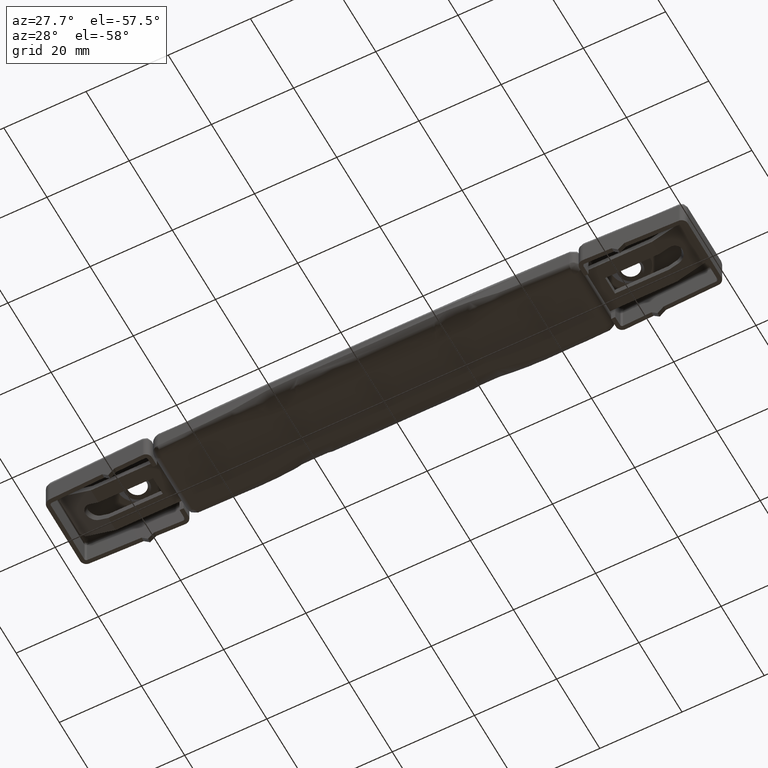
[diagram: clean part render]
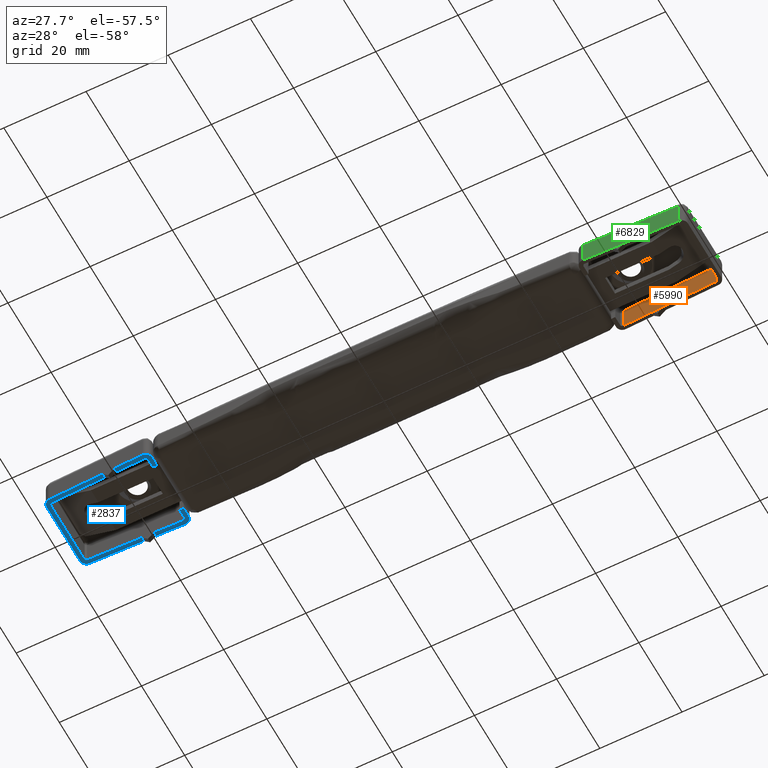
[diagram: same view with three faces highlighted in distinct colors, each labeled with its STEP entity id]
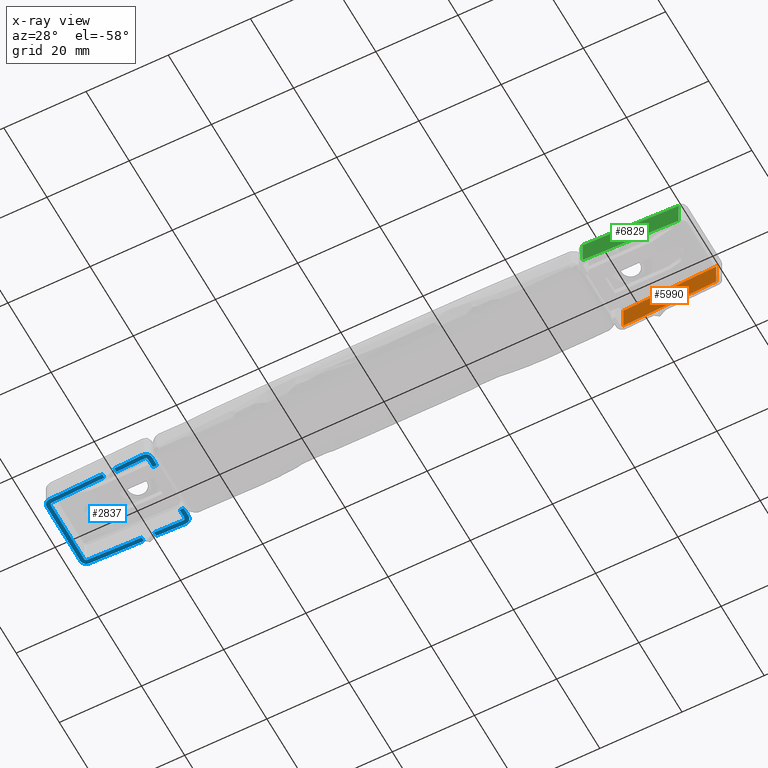
[diagram: x-ray of the same camera — body ghosted, the three highlighted faces saturated]
A machine part, auxiliary view with three faces highlighted in distinct colors.
The next image is the same camera in x-ray (body ghosted, the three faces saturated) — at least one of them is partly hidden behind the body in this view.
Their STEP definitions:

[orange] entity #5990 — the highlighted face is a freeform B-spline surface patch.
#5172=CARTESIAN_POINT('',(63.500000000000000,8.646147023335811,0.0));
#5173=VERTEX_POINT('',#5172);
#5207=CARTESIAN_POINT('',(60.500000000000000,8.738494849422798,0.0));
#5208=VERTEX_POINT('',#5207);
#5228=CARTESIAN_POINT('',(60.500000000000000,8.738494849422798,0.0));
#5229=CARTESIAN_POINT('',(63.500000000000000,8.646147023335811,0.0));
#5230=QUASI_UNIFORM_CURVE('',1,(#5228,#5229),.UNSPECIFIED.,.F.,.U.);
#5231=EDGE_CURVE('',#5208,#5173,#5230,.T.);
#5444=CARTESIAN_POINT('',(76.515384017364710,8.245499550105571,6.0));
#5445=VERTEX_POINT('',#5444);
#5613=CARTESIAN_POINT('',(53.515384017364703,8.953499550105672,6.0));
#5614=VERTEX_POINT('',#5613);
#5718=CARTESIAN_POINT('',(53.515384017364703,8.953499550105672,-4.440892E-013));
#5719=VERTEX_POINT('',#5718);
#5729=CARTESIAN_POINT('',(53.515384017364703,8.953499550105672,-4.440892E-013));
#5730=CARTESIAN_POINT('',(53.515384017364703,8.953499550105672,6.0));
#5731=QUASI_UNIFORM_CURVE('',1,(#5729,#5730),.UNSPECIFIED.,.F.,.U.);
#5732=EDGE_CURVE('',#5719,#5614,#5731,.T.);
#5797=CARTESIAN_POINT('',(76.515384017364710,8.245499550105571,0.0));
#5798=VERTEX_POINT('',#5797);
#5799=CARTESIAN_POINT('',(76.515384017364710,8.245499550105571,6.0));
#5800=CARTESIAN_POINT('',(76.515384017364710,8.245499550105571,0.0));
#5801=QUASI_UNIFORM_CURVE('',1,(#5799,#5800),.UNSPECIFIED.,.F.,.U.);
#5802=EDGE_CURVE('',#5445,#5798,#5801,.T.);
#5842=CARTESIAN_POINT('',(53.515384017364703,8.953499550105672,6.0));
#5843=CARTESIAN_POINT('',(76.515384017364710,8.245499550105571,6.0));
#5844=QUASI_UNIFORM_CURVE('',1,(#5842,#5843),.UNSPECIFIED.,.F.,.U.);
#5845=EDGE_CURVE('',#5614,#5445,#5844,.T.);
#5969=CARTESIAN_POINT('',(77.664233972786249,8.210134951477812,-0.299699988371302));
#5970=CARTESIAN_POINT('',(52.366533445035081,8.988864167723477,-0.299699988371302));
#5971=CARTESIAN_POINT('',(77.664233972786249,8.210134951477812,6.299700149303400));
#5972=CARTESIAN_POINT('',(52.366533445035081,8.988864167723477,6.299700149303400));
#5973=B_SPLINE_SURFACE_WITH_KNOTS('',1,1,((#5969,#5971),(#5970,#5972)),.UNSPECIFIED.,.F.,.F.,.U.,(2,2),(2,2),(0.0,25.309683348157801),(0.0,6.599400137674702),.UNSPECIFIED.);
#5974=ORIENTED_EDGE('',*,*,#5845,.F.);
#5975=ORIENTED_EDGE('',*,*,#5732,.F.);
#5976=CARTESIAN_POINT('',(53.515384017364703,8.953499550105672,-4.440892E-013));
#5977=CARTESIAN_POINT('',(60.500000000000000,8.738494849422798,0.0));
#5978=QUASI_UNIFORM_CURVE('',1,(#5976,#5977),.UNSPECIFIED.,.F.,.U.);
#5979=EDGE_CURVE('',#5719,#5208,#5978,.T.);
#5980=ORIENTED_EDGE('',*,*,#5979,.T.);
#5981=ORIENTED_EDGE('',*,*,#5231,.T.);
#5982=CARTESIAN_POINT('',(63.500000000000000,8.646147023335811,0.0));
#5983=CARTESIAN_POINT('',(76.515384017364710,8.245499550105571,0.0));
#5984=QUASI_UNIFORM_CURVE('',1,(#5982,#5983),.UNSPECIFIED.,.F.,.U.);
#5985=EDGE_CURVE('',#5173,#5798,#5984,.T.);
#5986=ORIENTED_EDGE('',*,*,#5985,.T.);
#5987=ORIENTED_EDGE('',*,*,#5802,.F.);
#5988=EDGE_LOOP('',(#5974,#5975,#5980,#5981,#5986,#5987));
#5989=FACE_OUTER_BOUND('',#5988,.T.);
#5990=ADVANCED_FACE('',(#5989),#5973,.F.);

[blue] entity #2837 — the highlighted face is a freeform B-spline surface patch.
#1054=CARTESIAN_POINT('',(-63.500000000000000,-9.646150517391259,0.0));
#1055=VERTEX_POINT('',#1054);
#1061=CARTESIAN_POINT('',(-63.500000000000000,-8.646147023335811,0.0));
#1062=VERTEX_POINT('',#1061);
#1063=CARTESIAN_POINT('',(-63.500000000000000,-8.646147023335811,0.0));
#1064=CARTESIAN_POINT('',(-63.500000000000000,-9.646150517391259,0.0));
#1065=QUASI_UNIFORM_CURVE('',1,(#1063,#1064),.UNSPECIFIED.,.F.,.U.);
#1066=EDGE_CURVE('',#1062,#1055,#1065,.T.);
#1087=CARTESIAN_POINT('',(-60.500000000000000,-9.738459213043500,0.0));
#1088=VERTEX_POINT('',#1087);
#1096=CARTESIAN_POINT('',(-60.500000000000000,-8.738494849422798,0.0));
#1097=VERTEX_POINT('',#1096);
#1103=CARTESIAN_POINT('',(-60.500000000000000,-9.738459213043500,0.0));
#1104=CARTESIAN_POINT('',(-60.500000000000000,-8.738494849422798,0.0));
#1105=QUASI_UNIFORM_CURVE('',1,(#1103,#1104),.UNSPECIFIED.,.F.,.U.);
#1106=EDGE_CURVE('',#1088,#1097,#1105,.T.);
#1140=CARTESIAN_POINT('',(-63.500000000000000,8.645696660869561,0.0));
#1141=VERTEX_POINT('',#1140);
#1147=CARTESIAN_POINT('',(-63.500000000000000,9.645620695652170,0.0));
#1148=VERTEX_POINT('',#1147);
#1149=CARTESIAN_POINT('',(-63.500000000000000,8.645696660869561,0.0));
#1150=CARTESIAN_POINT('',(-63.500000000000000,9.645620695652170,0.0));
#1151=QUASI_UNIFORM_CURVE('',1,(#1149,#1150),.UNSPECIFIED.,.F.,.U.);
#1152=EDGE_CURVE('',#1141,#1148,#1151,.T.);
#1168=CARTESIAN_POINT('',(-60.500000000000000,9.737968521739139,0.0));
#1169=VERTEX_POINT('',#1168);
#1175=CARTESIAN_POINT('',(-60.500000000000000,8.738005356521768,-2.775558E-014));
#1176=VERTEX_POINT('',#1175);
#1177=CARTESIAN_POINT('',(-60.500000000000000,9.737968521739139,0.0));
#1178=CARTESIAN_POINT('',(-60.500000000000000,8.738005356521768,-2.775558E-014));
#1179=QUASI_UNIFORM_CURVE('',1,(#1177,#1178),.UNSPECIFIED.,.F.,.U.);
#1180=EDGE_CURVE('',#1169,#1176,#1179,.T.);
#1558=CARTESIAN_POINT('',(-53.515384017364703,8.952499550105671,0.0));
#1559=VERTEX_POINT('',#1558);
#1565=CARTESIAN_POINT('',(-53.0,8.452736274134210,0.0));
#1566=VERTEX_POINT('',#1565);
#1567=CARTESIAN_POINT('',(-53.515384017364703,8.952499550105671,0.0));
#1568=CARTESIAN_POINT('',(-53.457025701274858,8.954326184272668,0.0));
#1569=CARTESIAN_POINT('',(-53.331268979952370,8.936024244830657,0.0));
#1570=CARTESIAN_POINT('',(-53.161364044684987,8.838860564482975,0.0));
#1571=CARTESIAN_POINT('',(-53.032556051068092,8.669504670740041,0.0));
#1572=CARTESIAN_POINT('',(-52.999875339479480,8.527834964618922,0.0));
#1573=CARTESIAN_POINT('',(-53.0,8.452736274134210,0.0));
#1574=B_SPLINE_CURVE_WITH_KNOTS('',3,(#1567,#1568,#1569,#1570,#1571,#1572,#1573),.UNSPECIFIED.,.F.,.U.,(4,1,1,1,4),(0.000000569266477,0.175185912129416,0.375442569291639,0.575619680285155,0.800868105577912),.UNSPECIFIED.);
#1575=EDGE_CURVE('',#1559,#1566,#1574,.T.);
#1600=CARTESIAN_POINT('',(-53.0,-8.453736274134210,0.0));
#1601=VERTEX_POINT('',#1600);
#1607=CARTESIAN_POINT('',(-53.515384017364703,-8.953499550105672,-4.440892E-013));
#1608=VERTEX_POINT('',#1607);
#1609=CARTESIAN_POINT('',(-53.0,-8.453736274134210,0.0));
#1610=CARTESIAN_POINT('',(-52.999641937350503,-8.553915980082039,2.757221E-015));
#1611=CARTESIAN_POINT('',(-53.051807587274482,-8.720294205238639,1.312732E-014));
#1612=CARTESIAN_POINT('',(-53.247414701314781,-8.909875614122786,-1.087166E-013));
#1613=CARTESIAN_POINT('',(-53.415239522939963,-8.956955849707880,2.882294E-013));
#1614=CARTESIAN_POINT('',(-53.515384017364703,-8.953499550105672,-4.440892E-013));
#1615=B_SPLINE_CURVE_WITH_KNOTS('',3,(#1609,#1610,#1611,#1612,#1613,#1614),.UNSPECIFIED.,.F.,.U.,(4,1,1,4),(0.000000569266561,0.300329223898913,0.500539450945406,0.800868105577936),.UNSPECIFIED.);
#1616=EDGE_CURVE('',#1601,#1608,#1615,.T.);
#1641=CARTESIAN_POINT('',(-77.0,7.744736274134200,0.0));
#1642=VERTEX_POINT('',#1641);
#1648=CARTESIAN_POINT('',(-76.515384017364710,8.244499550105649,0.0));
#1649=VERTEX_POINT('',#1648);
#1650=CARTESIAN_POINT('',(-77.0,7.744736274134200,0.0));
#1651=CARTESIAN_POINT('',(-77.0,8.229581805944509,0.0));
#1652=CARTESIAN_POINT('',(-76.515384017364710,8.244499550105656,0.0));
#1660=(BOUNDED_CURVE()B_SPLINE_CURVE(2,(#1650,#1651,#1652),.UNSPECIFIED.,.F.,.U.)CURVE()GEOMETRIC_REPRESENTATION_ITEM()QUASI_UNIFORM_CURVE()RATIONAL_B_SPLINE_CURVE((1.0,0.717902512437945,1.0))REPRESENTATION_ITEM(''));
#1661=EDGE_CURVE('',#1642,#1649,#1660,.T.);
#1686=CARTESIAN_POINT('',(-76.515384017364710,-8.245499550105571,0.0));
#1687=VERTEX_POINT('',#1686);
#1693=CARTESIAN_POINT('',(-77.0,-7.745736274134121,0.0));
#1694=VERTEX_POINT('',#1693);
#1695=CARTESIAN_POINT('',(-76.515384017364710,-8.245499550105578,0.0));
#1696=CARTESIAN_POINT('',(-77.0,-8.230581805944430,0.0));
#1697=CARTESIAN_POINT('',(-77.0,-7.745736274134121,0.0));
#1705=(BOUNDED_CURVE()B_SPLINE_CURVE(2,(#1695,#1696,#1697),.UNSPECIFIED.,.F.,.U.)CURVE()GEOMETRIC_REPRESENTATION_ITEM()QUASI_UNIFORM_CURVE()RATIONAL_B_SPLINE_CURVE((1.0,0.717902512437945,1.0))REPRESENTATION_ITEM(''));
#1706=EDGE_CURVE('',#1687,#1694,#1705,.T.);
#1831=CARTESIAN_POINT('',(-76.515384017364710,8.244499550105649,0.0));
#1832=CARTESIAN_POINT('',(-53.515384017364703,8.952499550105671,0.0));
#1833=QUASI_UNIFORM_CURVE('',1,(#1831,#1832),.UNSPECIFIED.,.F.,.U.);
#1834=EDGE_CURVE('',#1649,#1559,#1833,.T.);
#1847=CARTESIAN_POINT('',(-77.0,-7.745736274134121,0.0));
#1848=CARTESIAN_POINT('',(-77.0,7.744736274134200,0.0));
#1849=QUASI_UNIFORM_CURVE('',1,(#1847,#1848),.UNSPECIFIED.,.F.,.U.);
#1850=EDGE_CURVE('',#1694,#1642,#1849,.T.);
#1865=CARTESIAN_POINT('',(-53.515384017364703,-8.953499550105672,-4.440892E-013));
#1866=CARTESIAN_POINT('',(-60.500000000000000,-8.738494849422798,0.0));
#1867=QUASI_UNIFORM_CURVE('',1,(#1865,#1866),.UNSPECIFIED.,.F.,.U.);
#1868=EDGE_CURVE('',#1608,#1097,#1867,.T.);
#1871=CARTESIAN_POINT('',(-63.500000000000000,-8.646147023335811,0.0));
#1872=CARTESIAN_POINT('',(-76.515384017364710,-8.245499550105571,0.0));
#1873=QUASI_UNIFORM_CURVE('',1,(#1871,#1872),.UNSPECIFIED.,.F.,.U.);
#1874=EDGE_CURVE('',#1062,#1687,#1873,.T.);
#1887=CARTESIAN_POINT('',(-53.0,6.199900000000000,0.0));
#1888=VERTEX_POINT('',#1887);
#1900=CARTESIAN_POINT('',(-53.0,8.452736274134210,0.0));
#1901=CARTESIAN_POINT('',(-53.0,6.199900000000000,0.0));
#1902=QUASI_UNIFORM_CURVE('',1,(#1900,#1901),.UNSPECIFIED.,.F.,.U.);
#1903=EDGE_CURVE('',#1566,#1888,#1902,.T.);
#1946=CARTESIAN_POINT('',(-53.0,-6.200000000000000,0.0));
#1947=VERTEX_POINT('',#1946);
#1953=CARTESIAN_POINT('',(-53.0,-6.200000000000000,0.0));
#1954=CARTESIAN_POINT('',(-53.0,-8.453736274134210,0.0));
#1955=QUASI_UNIFORM_CURVE('',1,(#1953,#1954),.UNSPECIFIED.,.F.,.U.);
#1956=EDGE_CURVE('',#1947,#1601,#1955,.T.);
#1996=CARTESIAN_POINT('',(-52.0,6.199900000000000,0.0));
#1997=VERTEX_POINT('',#1996);
#1998=CARTESIAN_POINT('',(-52.0,6.199900000000000,0.0));
#1999=CARTESIAN_POINT('',(-53.0,6.199900000000000,0.0));
#2000=QUASI_UNIFORM_CURVE('',1,(#1998,#1999),.UNSPECIFIED.,.F.,.U.);
#2001=EDGE_CURVE('',#1997,#1888,#2000,.T.);
#2018=CARTESIAN_POINT('',(-52.0,-6.200000000000000,0.0));
#2019=VERTEX_POINT('',#2018);
#2020=CARTESIAN_POINT('',(-53.0,-6.200000000000000,0.0));
#2021=CARTESIAN_POINT('',(-52.0,-6.200000000000000,0.0));
#2022=QUASI_UNIFORM_CURVE('',1,(#2020,#2021),.UNSPECIFIED.,.F.,.U.);
#2023=EDGE_CURVE('',#1947,#2019,#2022,.T.);
#2429=CARTESIAN_POINT('',(-53.546152052094101,9.952026102048581,0.0));
#2430=VERTEX_POINT('',#2429);
#2437=CARTESIAN_POINT('',(-52.0,8.452736274134210,0.0));
#2438=VERTEX_POINT('',#2437);
#2444=CARTESIAN_POINT('',(-53.546152052094101,9.952026102048581,0.0));
#2445=CARTESIAN_POINT('',(-53.320968062910339,9.959334648557702,0.0));
#2446=CARTESIAN_POINT('',(-52.981238170923149,9.891808341693114,0.0));
#2447=CARTESIAN_POINT('',(-52.601526537775371,9.668029060532684,0.0));
#2448=CARTESIAN_POINT('',(-52.342689153406802,9.429340273117907,0.0));
#2449=CARTESIAN_POINT('',(-52.083331636120043,9.040539579650607,0.0));
#2450=CARTESIAN_POINT('',(-51.999625694139127,8.678032098483941,0.0));
#2451=CARTESIAN_POINT('',(-52.0,8.452736274134210,0.0));
#2452=B_SPLINE_CURVE_WITH_KNOTS('',3,(#2444,#2445,#2446,#2447,#2448,#2449,#2450,#2451),.UNSPECIFIED.,.F.,.U.,(4,1,1,1,1,4),(0.000000314446442,0.675683853991568,1.013552643595024,1.313820066304059,1.726732956947527,2.402416496494615),.UNSPECIFIED.);
#2453=EDGE_CURVE('',#2430,#2438,#2452,.T.);
#2472=CARTESIAN_POINT('',(-52.0,-8.453736274134210,0.0));
#2473=VERTEX_POINT('',#2472);
#2480=CARTESIAN_POINT('',(-53.546152052094101,-9.953026102048590,0.0));
#2481=VERTEX_POINT('',#2480);
#2487=CARTESIAN_POINT('',(-52.0,-8.453736274134210,0.0));
#2488=CARTESIAN_POINT('',(-51.999612895665742,-8.679048987790416,0.0));
#2489=CARTESIAN_POINT('',(-52.077607612059232,-9.016497025722369,0.0));
#2490=CARTESIAN_POINT('',(-52.353186148867692,-9.453135482278571,0.0));
#2491=CARTESIAN_POINT('',(-52.677909629303947,-9.737966775252071,0.0));
#2492=CARTESIAN_POINT('',(-53.107133456708219,-9.922945506306254,0.0));
#2493=CARTESIAN_POINT('',(-53.396072317024249,-9.957703819070536,0.0));
#2494=CARTESIAN_POINT('',(-53.546152052094101,-9.953026102048590,0.0));
#2495=B_SPLINE_CURVE_WITH_KNOTS('',3,(#2487,#2488,#2489,#2490,#2491,#2492,#2493,#2494),.UNSPECIFIED.,.F.,.U.,(4,1,1,1,1,4),(0.000000314442276,0.675683853989830,1.013552643594227,1.539043505709256,1.951968843554604,2.402416496494565),.UNSPECIFIED.);
#2496=EDGE_CURVE('',#2473,#2481,#2495,.T.);
#2515=CARTESIAN_POINT('',(-78.0,7.744736274134200,0.0));
#2516=VERTEX_POINT('',#2515);
#2523=CARTESIAN_POINT('',(-76.546152052094115,9.244026102048570,0.0));
#2524=VERTEX_POINT('',#2523);
#2530=CARTESIAN_POINT('',(-78.0,7.744736274134200,0.0));
#2531=CARTESIAN_POINT('',(-78.0,9.199272869565155,0.0));
#2532=CARTESIAN_POINT('',(-76.546152052094115,9.244026102048570,0.0));
#2540=(BOUNDED_CURVE()B_SPLINE_CURVE(2,(#2530,#2531,#2532),.UNSPECIFIED.,.F.,.U.)CURVE()GEOMETRIC_REPRESENTATION_ITEM()QUASI_UNIFORM_CURVE()RATIONAL_B_SPLINE_CURVE((1.0,0.717902512437939,1.0))REPRESENTATION_ITEM(''));
#2541=EDGE_CURVE('',#2516,#2524,#2540,.T.);
#2560=CARTESIAN_POINT('',(-76.546152052094115,-9.245026102048490,0.0));
#2561=VERTEX_POINT('',#2560);
#2568=CARTESIAN_POINT('',(-78.0,-7.745736274134121,0.0));
#2569=VERTEX_POINT('',#2568);
#2575=CARTESIAN_POINT('',(-76.546152052094115,-9.245026102048492,0.0));
#2576=CARTESIAN_POINT('',(-78.0,-9.200272869565074,0.0));
#2577=CARTESIAN_POINT('',(-78.0,-7.745736274134121,0.0));
#2585=(BOUNDED_CURVE()B_SPLINE_CURVE(2,(#2575,#2576,#2577),.UNSPECIFIED.,.F.,.U.)CURVE()GEOMETRIC_REPRESENTATION_ITEM()QUASI_UNIFORM_CURVE()RATIONAL_B_SPLINE_CURVE((1.0,0.717902512437939,1.0))REPRESENTATION_ITEM(''));
#2586=EDGE_CURVE('',#2561,#2569,#2585,.T.);
#2702=CARTESIAN_POINT('',(-76.546152052094115,9.244026102048570,0.0));
#2703=CARTESIAN_POINT('',(-63.500000000000000,9.645620695652170,0.0));
#2704=QUASI_UNIFORM_CURVE('',1,(#2702,#2703),.UNSPECIFIED.,.F.,.U.);
#2705=EDGE_CURVE('',#2524,#1148,#2704,.T.);
#2710=CARTESIAN_POINT('',(-60.500000000000000,9.737968521739139,0.0));
#2711=CARTESIAN_POINT('',(-53.546152052094101,9.952026102048581,0.0));
#2712=QUASI_UNIFORM_CURVE('',1,(#2710,#2711),.UNSPECIFIED.,.F.,.U.);
#2713=EDGE_CURVE('',#1169,#2430,#2712,.T.);
#2724=CARTESIAN_POINT('',(-78.0,-7.745736274134121,0.0));
#2725=CARTESIAN_POINT('',(-78.0,7.744736274134200,0.0));
#2726=QUASI_UNIFORM_CURVE('',1,(#2724,#2725),.UNSPECIFIED.,.F.,.U.);
#2727=EDGE_CURVE('',#2569,#2516,#2726,.T.);
#2742=CARTESIAN_POINT('',(-53.546152052094101,-9.953026102048590,0.0));
#2743=CARTESIAN_POINT('',(-76.546152052094115,-9.245026102048490,0.0));
#2744=QUASI_UNIFORM_CURVE('',1,(#2742,#2743),.UNSPECIFIED.,.F.,.U.);
#2745=EDGE_CURVE('',#2481,#2561,#2744,.T.);
#2758=CARTESIAN_POINT('',(-52.0,8.452736274134210,0.0));
#2759=CARTESIAN_POINT('',(-52.0,6.199900000000000,0.0));
#2760=QUASI_UNIFORM_CURVE('',1,(#2758,#2759),.UNSPECIFIED.,.F.,.U.);
#2761=EDGE_CURVE('',#2438,#1997,#2760,.T.);
#2772=CARTESIAN_POINT('',(-52.0,-6.200000000000000,0.0));
#2773=CARTESIAN_POINT('',(-52.0,-8.453736274134210,0.0));
#2774=QUASI_UNIFORM_CURVE('',1,(#2772,#2773),.UNSPECIFIED.,.F.,.U.);
#2775=EDGE_CURVE('',#2019,#2473,#2774,.T.);
#2789=CARTESIAN_POINT('',(-60.500000000000000,8.738005356521768,-2.775558E-014));
#2790=CARTESIAN_POINT('',(-63.500000000000000,8.645696660869561,0.0));
#2791=QUASI_UNIFORM_CURVE('',1,(#2789,#2790),.UNSPECIFIED.,.F.,.U.);
#2792=EDGE_CURVE('',#1176,#1141,#2791,.T.);
#2798=CARTESIAN_POINT('',(-50.701300050393030,-10.947643963257191,0.0));
#2799=CARTESIAN_POINT('',(-79.298700646981302,-10.947643963257191,0.0));
#2800=CARTESIAN_POINT('',(-50.701300050393037,10.946644141222221,0.0));
#2801=CARTESIAN_POINT('',(-79.298700646981302,10.946644141222221,0.0));
#2802=B_SPLINE_SURFACE_WITH_KNOTS('',1,1,((#2798,#2800),(#2799,#2801)),.UNSPECIFIED.,.F.,.F.,.U.,(2,2),(2,2),(0.0,28.597400596588269),(0.0,21.894288104479418),.UNSPECIFIED.);
#2803=ORIENTED_EDGE('',*,*,#1066,.T.);
#2804=CARTESIAN_POINT('',(-63.500000000000000,-9.646150517391259,0.0));
#2805=CARTESIAN_POINT('',(-60.500000000000000,-9.738459213043500,0.0));
#2806=QUASI_UNIFORM_CURVE('',1,(#2804,#2805),.UNSPECIFIED.,.F.,.U.);
#2807=EDGE_CURVE('',#1055,#1088,#2806,.T.);
#2808=ORIENTED_EDGE('',*,*,#2807,.T.);
#2809=ORIENTED_EDGE('',*,*,#1106,.T.);
#2810=ORIENTED_EDGE('',*,*,#1868,.F.);
#2811=ORIENTED_EDGE('',*,*,#1616,.F.);
#2812=ORIENTED_EDGE('',*,*,#1956,.F.);
#2813=ORIENTED_EDGE('',*,*,#2023,.T.);
#2814=ORIENTED_EDGE('',*,*,#2775,.T.);
#2815=ORIENTED_EDGE('',*,*,#2496,.T.);
#2816=ORIENTED_EDGE('',*,*,#2745,.T.);
#2817=ORIENTED_EDGE('',*,*,#2586,.T.);
#2818=ORIENTED_EDGE('',*,*,#2727,.T.);
#2819=ORIENTED_EDGE('',*,*,#2541,.T.);
#2820=ORIENTED_EDGE('',*,*,#2705,.T.);
#2821=ORIENTED_EDGE('',*,*,#1152,.F.);
#2822=ORIENTED_EDGE('',*,*,#2792,.F.);
#2823=ORIENTED_EDGE('',*,*,#1180,.F.);
#2824=ORIENTED_EDGE('',*,*,#2713,.T.);
#2825=ORIENTED_EDGE('',*,*,#2453,.T.);
#2826=ORIENTED_EDGE('',*,*,#2761,.T.);
#2827=ORIENTED_EDGE('',*,*,#2001,.T.);
#2828=ORIENTED_EDGE('',*,*,#1903,.F.);
#2829=ORIENTED_EDGE('',*,*,#1575,.F.);
#2830=ORIENTED_EDGE('',*,*,#1834,.F.);
#2831=ORIENTED_EDGE('',*,*,#1661,.F.);
#2832=ORIENTED_EDGE('',*,*,#1850,.F.);
#2833=ORIENTED_EDGE('',*,*,#1706,.F.);
#2834=ORIENTED_EDGE('',*,*,#1874,.F.);
#2835=EDGE_LOOP('',(#2803,#2808,#2809,#2810,#2811,#2812,#2813,#2814,#2815,#2816,#2817,#2818,#2819,#2820,#2821,#2822,#2823,#2824,#2825,#2826,#2827,#2828,#2829,#2830,#2831,#2832,#2833,#2834));
#2836=FACE_OUTER_BOUND('',#2835,.T.);
#2837=ADVANCED_FACE('',(#2836),#2802,.T.);

[green] entity #6829 — the highlighted face is a freeform B-spline surface patch.
#5258=CARTESIAN_POINT('',(63.500000000000000,-9.645620695652170,0.0));
#5259=VERTEX_POINT('',#5258);
#5279=CARTESIAN_POINT('',(60.500000000000000,-9.737968521739139,0.0));
#5280=VERTEX_POINT('',#5279);
#5308=CARTESIAN_POINT('',(63.500000000000000,-9.645620695652170,0.0));
#5309=CARTESIAN_POINT('',(60.500000000000000,-9.737968521739139,0.0));
#5310=QUASI_UNIFORM_CURVE('',1,(#5308,#5309),.UNSPECIFIED.,.F.,.U.);
#5311=EDGE_CURVE('',#5259,#5280,#5310,.T.);
#6211=CARTESIAN_POINT('',(76.546152052094115,-9.244026102048570,6.0));
#6212=VERTEX_POINT('',#6211);
#6388=CARTESIAN_POINT('',(53.546152052094101,-9.952026102048581,6.0));
#6389=VERTEX_POINT('',#6388);
#6540=CARTESIAN_POINT('',(53.546152052094101,-9.952026102048581,0.0));
#6541=VERTEX_POINT('',#6540);
#6542=CARTESIAN_POINT('',(53.546152052094101,-9.952026102048581,6.0));
#6543=CARTESIAN_POINT('',(53.546152052094101,-9.952026102048581,0.0));
#6544=QUASI_UNIFORM_CURVE('',1,(#6542,#6543),.UNSPECIFIED.,.F.,.U.);
#6545=EDGE_CURVE('',#6389,#6541,#6544,.T.);
#6634=CARTESIAN_POINT('',(76.546152052094115,-9.244026102048570,0.0));
#6635=VERTEX_POINT('',#6634);
#6636=CARTESIAN_POINT('',(76.546152052094115,-9.244026102048570,0.0));
#6637=CARTESIAN_POINT('',(76.546152052094115,-9.244026102048570,6.0));
#6638=QUASI_UNIFORM_CURVE('',1,(#6636,#6637),.UNSPECIFIED.,.F.,.U.);
#6639=EDGE_CURVE('',#6635,#6212,#6638,.T.);
#6799=CARTESIAN_POINT('',(76.546152052094115,-9.244026102048570,6.0));
#6800=CARTESIAN_POINT('',(53.546152052094101,-9.952026102048581,6.0));
#6801=QUASI_UNIFORM_CURVE('',1,(#6799,#6800),.UNSPECIFIED.,.F.,.U.);
#6802=EDGE_CURVE('',#6212,#6389,#6801,.T.);
#6808=CARTESIAN_POINT('',(52.397302096672547,-9.987390700676329,-0.299699988370836));
#6809=CARTESIAN_POINT('',(77.695002624423722,-9.208661484430763,-0.299699988370836));
#6810=CARTESIAN_POINT('',(52.397302096672547,-9.987390700676329,6.299700149303377));
#6811=CARTESIAN_POINT('',(77.695002624423722,-9.208661484430763,6.299700149303377));
#6812=B_SPLINE_SURFACE_WITH_KNOTS('',1,1,((#6808,#6810),(#6809,#6811)),.UNSPECIFIED.,.F.,.F.,.U.,(2,2),(2,2),(0.0,25.309683348157801),(0.0,6.599400137674213),.UNSPECIFIED.);
#6813=CARTESIAN_POINT('',(76.546152052094115,-9.244026102048570,0.0));
#6814=CARTESIAN_POINT('',(63.500000000000000,-9.645620695652170,0.0));
#6815=QUASI_UNIFORM_CURVE('',1,(#6813,#6814),.UNSPECIFIED.,.F.,.U.);
#6816=EDGE_CURVE('',#6635,#5259,#6815,.T.);
#6817=ORIENTED_EDGE('',*,*,#6816,.F.);
#6818=ORIENTED_EDGE('',*,*,#6639,.T.);
#6819=ORIENTED_EDGE('',*,*,#6802,.T.);
#6820=ORIENTED_EDGE('',*,*,#6545,.T.);
#6821=CARTESIAN_POINT('',(60.500000000000000,-9.737968521739139,0.0));
#6822=CARTESIAN_POINT('',(53.546152052094101,-9.952026102048581,0.0));
#6823=QUASI_UNIFORM_CURVE('',1,(#6821,#6822),.UNSPECIFIED.,.F.,.U.);
#6824=EDGE_CURVE('',#5280,#6541,#6823,.T.);
#6825=ORIENTED_EDGE('',*,*,#6824,.F.);
#6826=ORIENTED_EDGE('',*,*,#5311,.F.);
#6827=EDGE_LOOP('',(#6817,#6818,#6819,#6820,#6825,#6826));
#6828=FACE_OUTER_BOUND('',#6827,.T.);
#6829=ADVANCED_FACE('',(#6828),#6812,.T.);